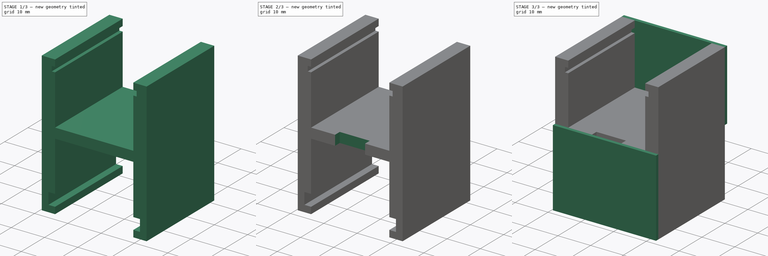
[diagram: build sequence overview — one tinted view per stage of 3, left to right]
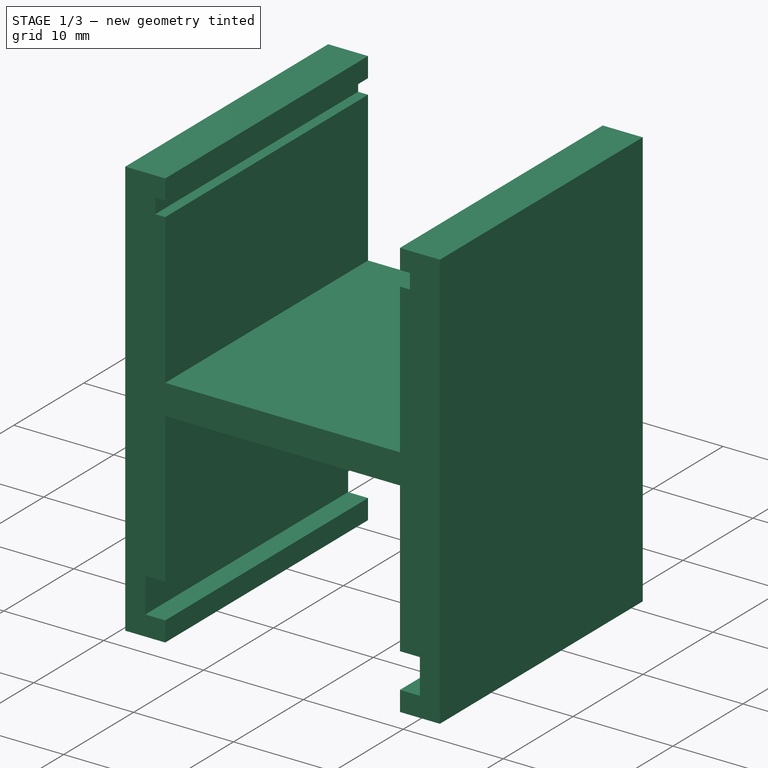
[diagram: stage 1 of 3 — iso view after this stage's code; geometry added in this stage tinted green]
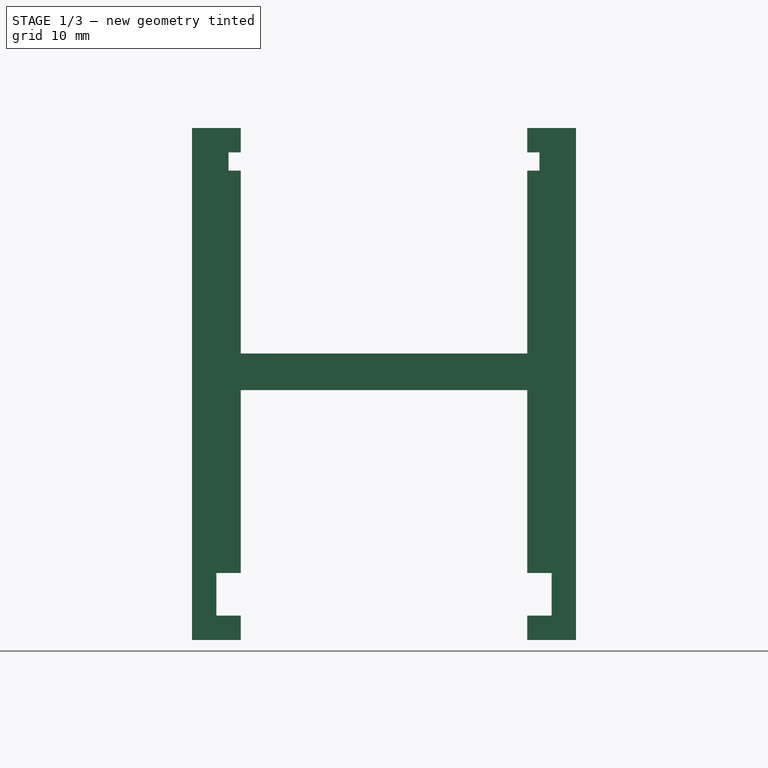
[diagram: stage 1 of 3 — front view after this stage's code; geometry added in this stage tinted green]
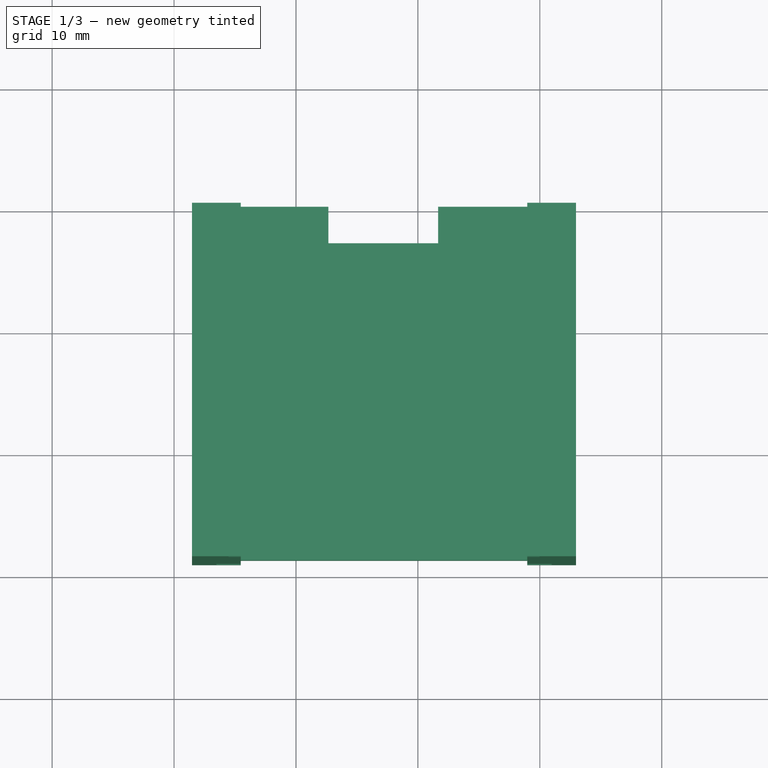
[diagram: stage 1 of 3 — top view after this stage's code; geometry added in this stage tinted green]
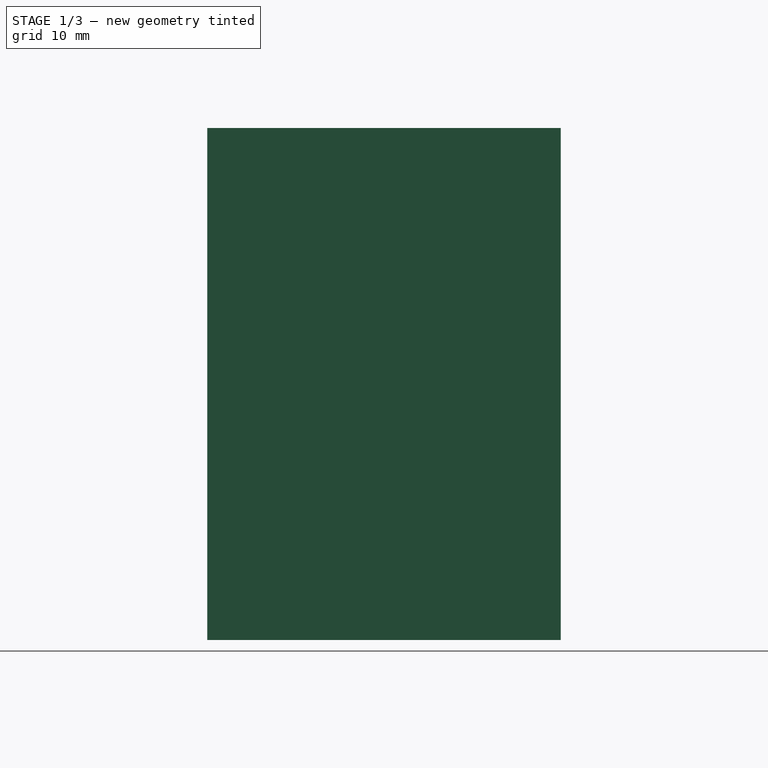
[diagram: stage 1 of 3 — right view after this stage's code; geometry added in this stage tinted green]
FCSTD DOCUMENT  (FreeCAD 0.20R29410 (Git))
Label: piezas_final
License: All rights reserved
LicenseURL: http://en.wikipedia.org/wiki/All_rights_reserved
objects: Sketcher::SketchObject×5, PartDesign::Pad×3, PartDesign::Pocket×2, PartDesign::Body×1
note: 16 computed .brp shape members not serialized (recipe doc carries the construction recipe); baked Part::Feature solids carry a one-line shape summary decoded from their .brp

FEATURE [Sketcher::SketchObject] Sketch
  FullyConstrained = true
  MapMode = 5
  Placement = pos=(0,0,0) rot=(1,0,0;1.5708rad)
  Support = -> [XZ_Plane]
  sketch-geometry (28):
    g0: LineSegment StartX=-14.5301 StartY=19.7734 StartZ=0 EndX=-18.5301 EndY=19.7734 EndZ=0
    g1: LineSegment StartX=-18.5301 StartY=19.7734 StartZ=0 EndX=-18.5301 EndY=-22.2266 EndZ=0
    g2: LineSegment StartX=-14.5301 StartY=19.7734 StartZ=0 EndX=-14.5301 EndY=17.7734 EndZ=0
    g3: LineSegment StartX=-14.5301 StartY=17.7734 StartZ=0 EndX=-15.5301 EndY=17.7734 EndZ=0
    g4: LineSegment StartX=-15.5301 StartY=17.7734 StartZ=0 EndX=-15.5301 EndY=16.2734 EndZ=0
    g5: LineSegment StartX=-15.5301 StartY=16.2734 StartZ=0 EndX=-14.5301 EndY=16.2734 EndZ=0
    g6: LineSegment StartX=-14.5301 StartY=16.2734 StartZ=0 EndX=-14.5301 EndY=1.27335 EndZ=0
    g7: LineSegment StartX=-14.5301 StartY=1.27335 StartZ=0 EndX=8.96989 EndY=1.27335 EndZ=0
    g8: LineSegment StartX=8.96989 StartY=1.27335 StartZ=0 EndX=8.96989 EndY=16.2734 EndZ=0
    g9: LineSegment StartX=8.96989 StartY=16.2734 StartZ=0 EndX=9.96989 EndY=16.2734 EndZ=0
    g10: LineSegment StartX=9.96989 StartY=16.2734 StartZ=0 EndX=9.96989 EndY=17.7734 EndZ=0
    g11: LineSegment StartX=9.96989 StartY=17.7734 StartZ=0 EndX=8.96989 EndY=17.7734 EndZ=0
    g12: LineSegment StartX=8.96989 StartY=17.7734 StartZ=0 EndX=8.96989 EndY=19.7734 EndZ=0
    g13: LineSegment StartX=8.96989 StartY=19.7734 StartZ=0 EndX=12.9699 EndY=19.7734 EndZ=0
    g14: LineSegment StartX=12.9699 StartY=19.7734 StartZ=0 EndX=12.9699 EndY=-22.2266 EndZ=0
    g15: LineSegment StartX=-18.5301 StartY=-22.2266 StartZ=0 EndX=-14.5301 EndY=-22.2266 EndZ=0
    g16: LineSegment StartX=-14.5301 StartY=-22.2266 StartZ=0 EndX=-14.5301 EndY=-20.2266 EndZ=0
    g17: LineSegment StartX=-14.5301 StartY=-20.2266 StartZ=0 EndX=-16.5301 EndY=-20.2266 EndZ=0
    g18: LineSegment StartX=-16.5301 StartY=-20.2266 StartZ=0 EndX=-16.5301 EndY=-16.7266 EndZ=0
    g19: LineSegment StartX=-16.5301 StartY=-16.7266 StartZ=0 EndX=-14.5301 EndY=-16.7266 EndZ=0
    g20: LineSegment StartX=-14.5301 StartY=-16.7266 StartZ=0 EndX=-14.5301 EndY=-1.72665 EndZ=0
    g21: LineSegment StartX=-14.5301 StartY=-1.72665 StartZ=0 EndX=8.96989 EndY=-1.72665 EndZ=0
    g22: LineSegment StartX=8.96989 StartY=-1.72665 StartZ=0 EndX=8.96989 EndY=-16.7266 EndZ=0
    g23: LineSegment StartX=8.96989 StartY=-16.7266 StartZ=0 EndX=10.9699 EndY=-16.7266 EndZ=0
    g24: LineSegment StartX=10.9699 StartY=-16.7266 StartZ=0 EndX=10.9699 EndY=-20.2266 EndZ=0
    g25: LineSegment StartX=10.9699 StartY=-20.2266 StartZ=0 EndX=8.96989 EndY=-20.2266 EndZ=0
    g26: LineSegment StartX=8.96989 StartY=-20.2266 StartZ=0 EndX=8.96989 EndY=-22.2266 EndZ=0
    g27: LineSegment StartX=8.96989 StartY=-22.2266 StartZ=0 EndX=12.9699 EndY=-22.2266 EndZ=0
  constraints (84):
    c: Horizontal(g0)
    c: Coincident(g1,g0)
    c: Vertical(g1)
    c: DistanceX(g0,g0) = 4
    c: DistanceY(g1,g1) = 42
    c: Coincident(g2,g0)
    c: Vertical(g2)
    c: DistanceY(g2,g2) = 2
    c: Coincident(g3,g2)
    c: Horizontal(g3)
    c: DistanceX(g3,g3) = 1
    c: Coincident(g4,g3)
    c: Vertical(g4)
    c: DistanceY(g4,g4) = 1.5
    c: Coincident(g5,g4)
    c: Horizontal(g5)
    c: DistanceX(g5,g5) = 1
    c: Coincident(g6,g5)
    c: Vertical(g6)
    c: DistanceY(g6,g6) = 15
    c: Coincident(g6,g7)
    c: Horizontal(g7)
    c: Coincident(g7,g8)
    c: Vertical(g8)
    c: Coincident(g8,g9)
    c: Horizontal(g9)
    c: Coincident(g9,g10)
    c: Vertical(g10)
    c: Coincident(g10,g11)
    c: Horizontal(g11)
    c: Coincident(g11,g12)
    c: Vertical(g12)
    c: Coincident(g12,g13)
    c: Horizontal(g13)
    c: Coincident(g13,g14)
    c: Vertical(g14)
    c: DistanceX(g7,g7) = 23.5
    c: DistanceY(g8,g8) = 15
    c: DistanceX(g9,g9) = 1
    c: DistanceY(g10,g10) = 1.5
    c: DistanceY(g12,g12) = 2
    c: DistanceY(g14,g14) = 42
    c: Coincident(g1,g15)
    c: Horizontal(g15)
    c: Coincident(g15,g16)
    c: Vertical(g16)
    c: Coincident(g16,g17)
    c: Horizontal(g17)
    c: Coincident(g17,g18)
    c: Vertical(g18)
    c: Coincident(g18,g19)
    c: Horizontal(g19)
    c: Coincident(g19,g20)
    c: Vertical(g20)
    c: Coincident(g20,g21)
    c: Horizontal(g21)
    c: Coincident(g21,g22)
    c: Vertical(g22)
    c: Coincident(g22,g23)
    c: Horizontal(g23)
    c: Coincident(g23,g24)
    c: Vertical(g24)
    c: Coincident(g24,g25)
    c: Coincident(g25,g26)
    c: Vertical(g26)
    c: Coincident(g26,g27)
    c: Coincident(g27,g14)
    c: DistanceX(g15,g15) = 4
    c: DistanceX(g17,g17) = 2
    c: DistanceX(g19,g19) = 2
    c: DistanceX(g21,g21) = 23.5
    c: DistanceX(g23,g23) = 2
    c: DistanceX(g25,g25) = 2
    c: DistanceX(g27,g27) = 4
    c: DistanceY(g16,g16) = 2
    c: DistanceY(g18,g18) = 3.5
    c: DistanceY(g20,g20) = 15
    c: DistanceY(g22,g22) = 15
    c: DistanceY(g24,g24) = 3.5
    c: DistanceY(g26,g26) = 2
    c: Horizontal(g25)
    c: DistanceX(g13,g13) = 4
    c: DistanceX(g20) = -14.5301
    c: DistanceY(g20) = -1.72665
FEATURE [PartDesign::Pad] Pad
  Direction = (0,-1,-2e-16)
  Length = 29
  Length2 = 10
  Placement = pos=(0,0,0) rot=(1,0,0;1.5708rad)
  Profile = -> Sketch
  ReferenceAxis = -> Sketch [N_Axis]
  Type = 0
FEATURE [Sketcher::SketchObject] Sketch001
  FullyConstrained = false
  MapMode = 5
  Placement = pos=(0,-3e-16,1.27335) rot=(0,0,1;3.14159rad)
  Support = -> [Pad]
  sketch-geometry (4):
    g0: LineSegment StartX=-1.65958 StartY=0 StartZ=0 EndX=-1.65958 EndY=3 EndZ=0
    g1: LineSegment StartX=-1.65958 StartY=3 StartZ=0 EndX=7.34042 EndY=3 EndZ=0
    g2: LineSegment StartX=7.34042 StartY=3 StartZ=0 EndX=7.34042 EndY=0 EndZ=0
    g3: LineSegment StartX=7.34042 StartY=0 StartZ=0 EndX=-1.65958 EndY=0 EndZ=0
  constraints (11):
    c: PointOnObject(g0,g-1)
    c: Vertical(g0)
    c: Coincident(g0,g1)
    c: Horizontal(g1)
    c: Coincident(g1,g2)
    c: PointOnObject(g2,g-1)
    c: Vertical(g2)
    c: Coincident(g2,g3)
    c: Coincident(g3,g0)
    c: DistanceX(g1,g1) = 9
    c: DistanceY(g2,g2) = 3
FEATURE [PartDesign::Pocket] Pocket
  BaseFeature = -> Pad
  Direction = (0,2e-16,-1)
  Length = 5
  Length2 = 5
  Placement = pos=(0,0,0) rot=(1,0,0;1.5708rad)
  Profile = -> Sketch001
  ReferenceAxis = -> Sketch001 [N_Axis]
  Type = 0
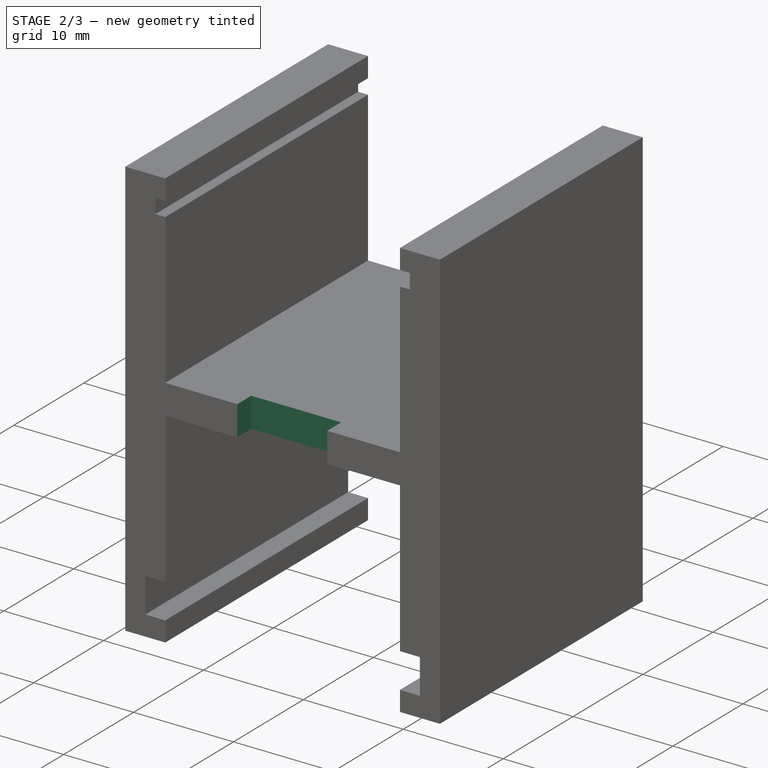
[diagram: stage 2 of 3 — iso view after this stage's code; geometry added in this stage tinted green]
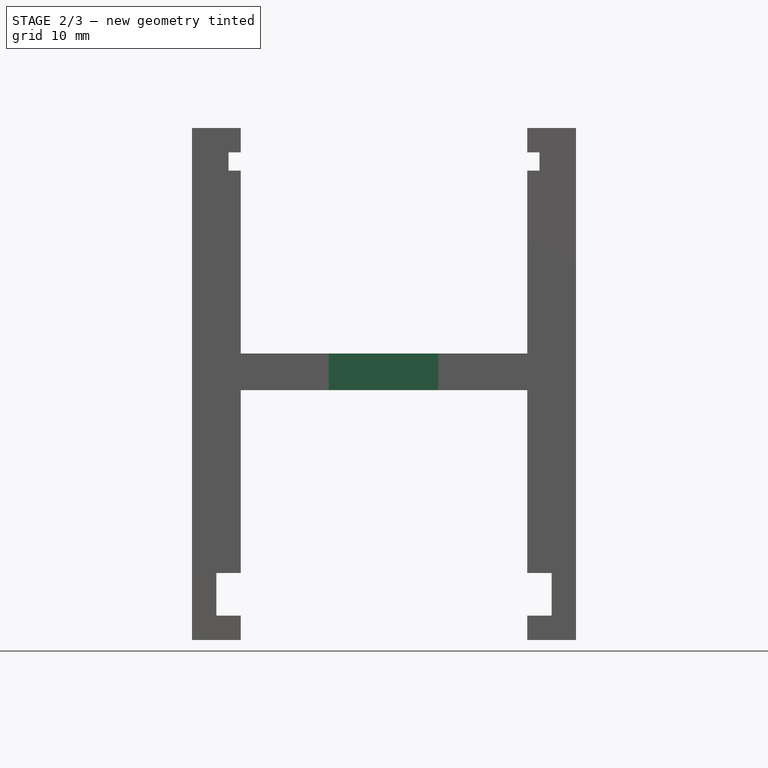
[diagram: stage 2 of 3 — front view after this stage's code; geometry added in this stage tinted green]
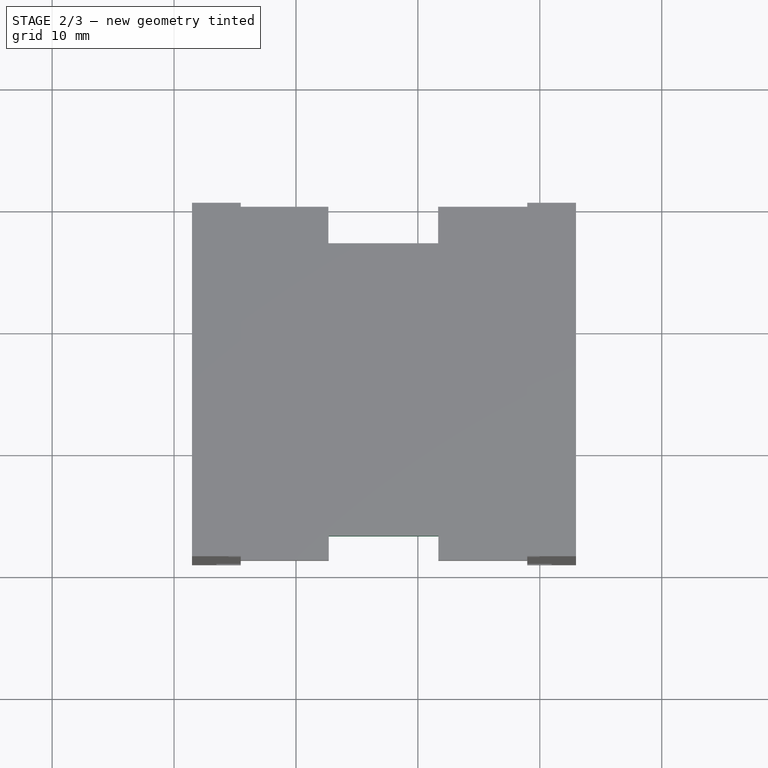
[diagram: stage 2 of 3 — top view after this stage's code; geometry added in this stage tinted green]
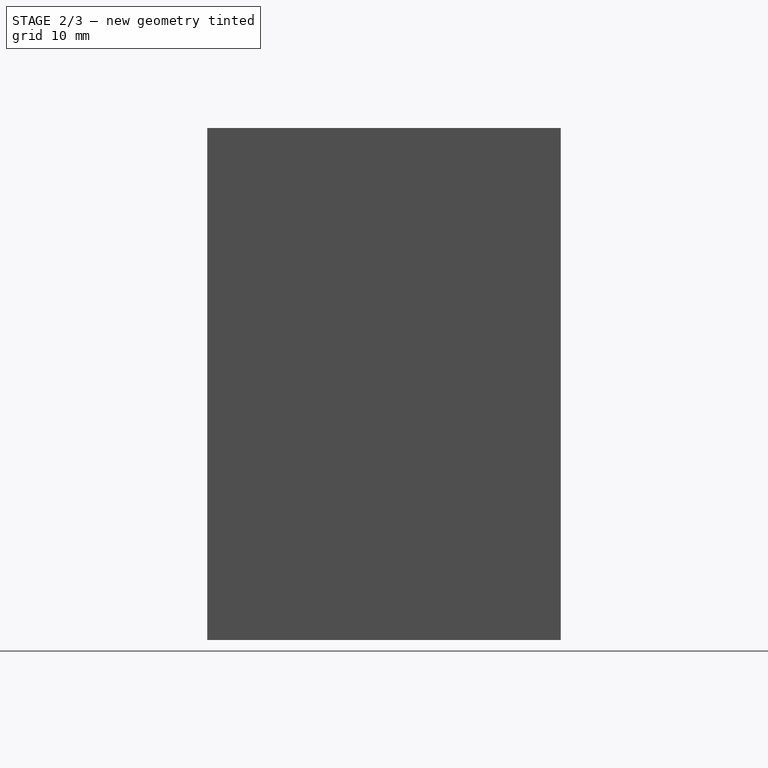
[diagram: stage 2 of 3 — right view after this stage's code; geometry added in this stage tinted green]
FEATURE [Sketcher::SketchObject] Sketch002
  FullyConstrained = false
  MapMode = 5
  Placement = pos=(0,4e-16,-1.72665) rot=(1,0,0;3.14159rad)
  Support = -> [Pocket]
  sketch-geometry (4):
    g0: LineSegment StartX=-7.31513 StartY=29.0028 StartZ=0 EndX=-7.31513 EndY=27.0028 EndZ=0
    g1: LineSegment StartX=-7.31513 StartY=27.0028 StartZ=0 EndX=1.68487 EndY=27.0028 EndZ=0
    g2: LineSegment StartX=1.68487 StartY=27.0028 StartZ=0 EndX=1.68487 EndY=29.0028 EndZ=0
    g3: LineSegment StartX=1.68487 StartY=29.0028 StartZ=0 EndX=-7.31513 EndY=29.0028 EndZ=0
  constraints (10):
    c: Vertical(g0)
    c: Coincident(g0,g1)
    c: Horizontal(g1)
    c: Coincident(g1,g2)
    c: Vertical(g2)
    c: Coincident(g2,g3)
    c: Coincident(g3,g0)
    c: Horizontal(g3)
    c: DistanceX(g1,g1) = 9
    c: DistanceY(g0,g0) = 2
FEATURE [PartDesign::Pocket] Pocket001
  BaseFeature = -> Pocket
  Direction = (0,-2e-16,1)
  Length = 5
  Length2 = 5
  Placement = pos=(0,0,0) rot=(1,0,0;1.5708rad)
  Profile = -> Sketch002
  ReferenceAxis = -> Sketch002 [N_Axis]
  Type = 0
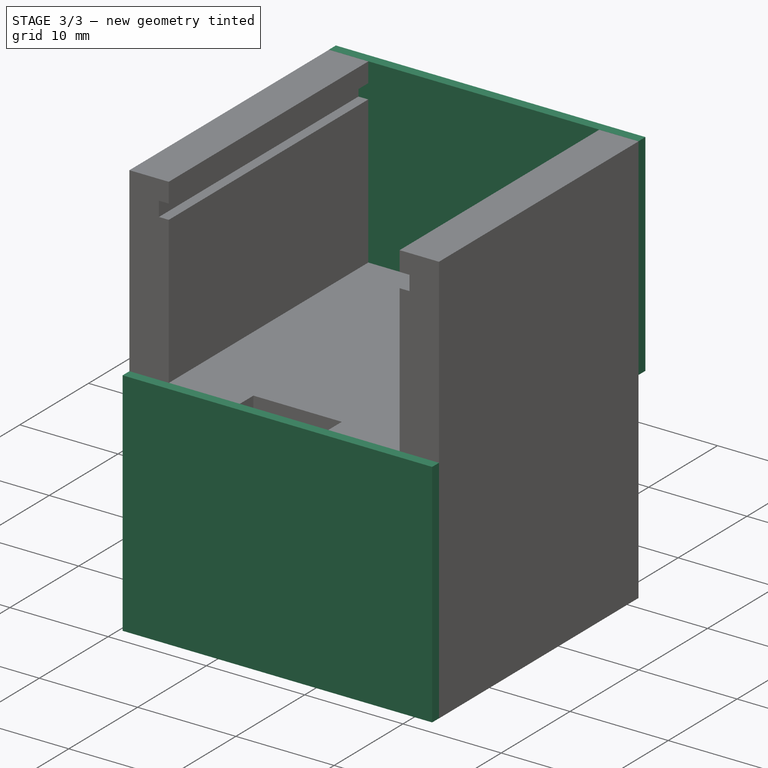
[diagram: stage 3 of 3 — iso view after this stage's code; geometry added in this stage tinted green]
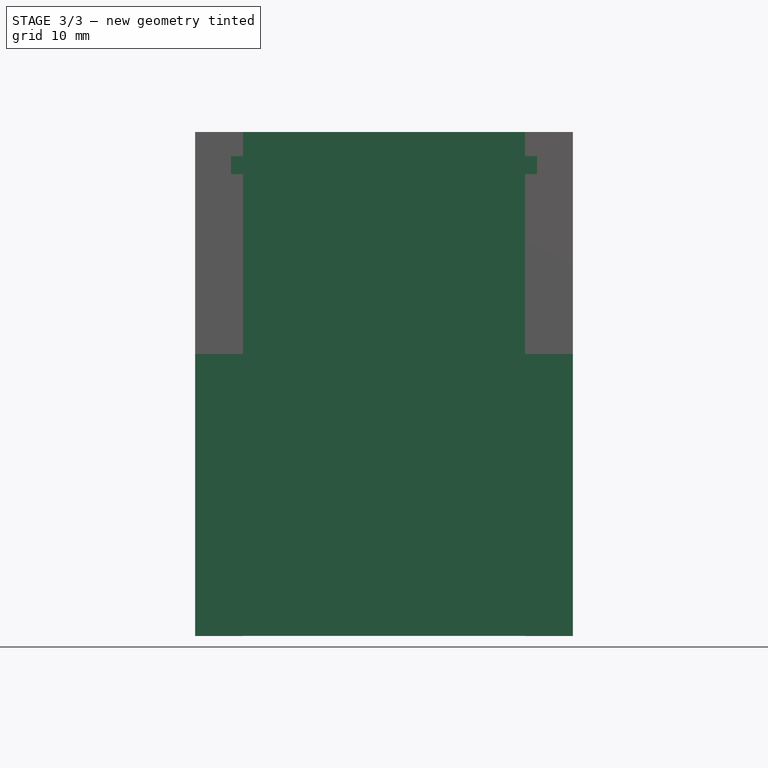
[diagram: stage 3 of 3 — front view after this stage's code; geometry added in this stage tinted green]
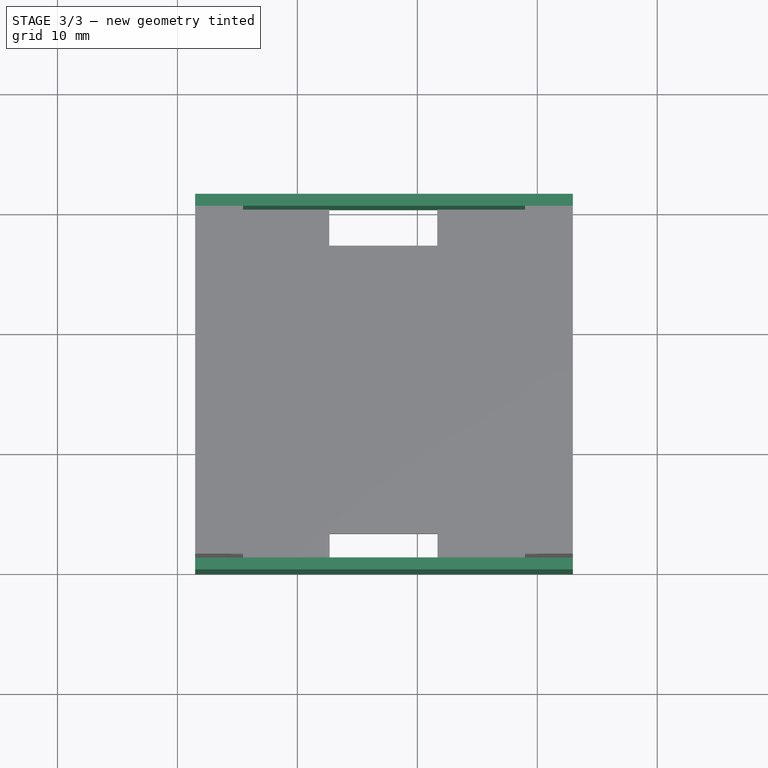
[diagram: stage 3 of 3 — top view after this stage's code; geometry added in this stage tinted green]
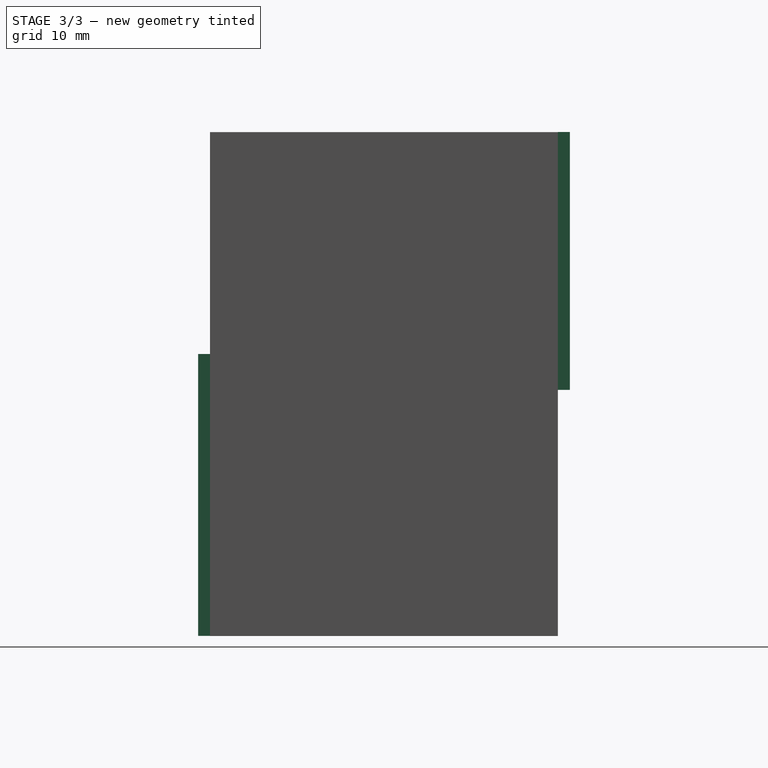
[diagram: stage 3 of 3 — right view after this stage's code; geometry added in this stage tinted green]
FEATURE [Sketcher::SketchObject] Sketch003
  FullyConstrained = false
  MapMode = 5
  Placement = pos=(12.9699,0,0) rot=(0.707107,0,0.707107;3.14159rad)
  Support = -> [Pocket001]
  sketch-geometry (4):
    g0: LineSegment StartX=19.7847 StartY=0 StartZ=0 EndX=19.7847 EndY=-1 EndZ=0
    g1: LineSegment StartX=19.7847 StartY=-1 StartZ=0 EndX=-1.71533 EndY=-1 EndZ=0
    g2: LineSegment StartX=-1.71533 StartY=-1 StartZ=0 EndX=-1.71533 EndY=0 EndZ=0
    g3: LineSegment StartX=-1.71533 StartY=0 StartZ=0 EndX=19.7847 EndY=0 EndZ=0
  constraints (11):
    c: PointOnObject(g0,g-1)
    c: Vertical(g0)
    c: Coincident(g0,g1)
    c: Horizontal(g1)
    c: Coincident(g1,g2)
    c: PointOnObject(g2,g-1)
    c: Coincident(g2,g3)
    c: Coincident(g3,g0)
    c: DistanceY(g0,g0) = 1
    c: DistanceX(g3,g3) = 21.5
    c: DistanceX(g1,g1) = 21.5
FEATURE [PartDesign::Pad] Pad001
  BaseFeature = -> Pocket001
  Direction = (-1,0,0)
  Length = 31.5
  Length2 = 0
  Placement = pos=(0,0,0) rot=(1,0,0;1.5708rad)
  Profile = -> Sketch003
  ReferenceAxis = -> Sketch003 [N_Axis]
  Type = 4
  UseCustomVector = true
FEATURE [Sketcher::SketchObject] Sketch004
  FullyConstrained = false
  MapMode = 5
  Placement = pos=(-18.5301,0,0) rot=(0.707107,0,-0.707107;3.14159rad)
  Support = -> [Pad001]
  sketch-geometry (4):
    g0: LineSegment StartX=22.2156 StartY=28.9919 StartZ=0 EndX=22.2156 EndY=29.9919 EndZ=0
    g1: LineSegment StartX=22.2156 StartY=29.9919 StartZ=0 EndX=-1.28436 EndY=29.9919 EndZ=0
    g2: LineSegment StartX=-1.28436 StartY=29.9919 StartZ=0 EndX=-1.28436 EndY=28.9919 EndZ=0
    g3: LineSegment StartX=-1.28436 StartY=28.9919 StartZ=0 EndX=22.2156 EndY=28.9919 EndZ=0
  constraints (10):
    c: Vertical(g0)
    c: Coincident(g0,g1)
    c: Horizontal(g1)
    c: Coincident(g1,g2)
    c: Vertical(g2)
    c: Coincident(g2,g3)
    c: Coincident(g3,g0)
    c: Horizontal(g3)
    c: DistanceX(g1,g1) = 23.5
    c: DistanceY(g0,g0) = 1
FEATURE [PartDesign::Pad] Pad002
  BaseFeature = -> Pad001
  Direction = (1,0,0)
  Length = 31.5
  Length2 = 0
  Placement = pos=(0,0,0) rot=(1,0,0;1.5708rad)
  Profile = -> Sketch004
  ReferenceAxis = -> Sketch004 [N_Axis]
  Type = 4
  UseCustomVector = true
FEATURE [PartDesign::Body] Body
  Group = -> [Sketch,Pad,Sketch001,Pocket,Sketch002,Pocket001,Sketch003,Pad001,Sketch004,Pad002]
  Origin = -> Origin
  Tip = -> Pad002
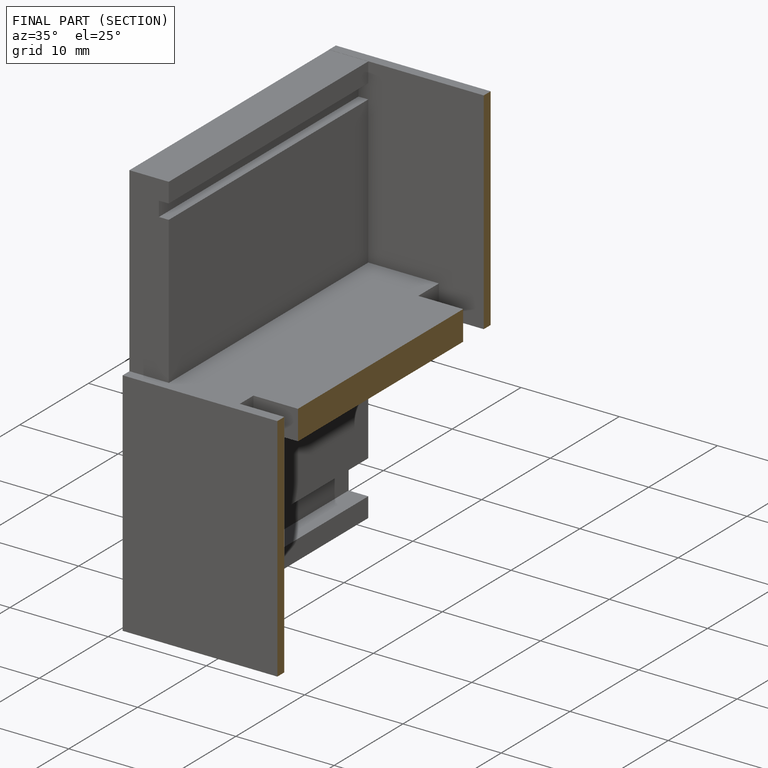
[diagram: finished part — half-section view (interior)]
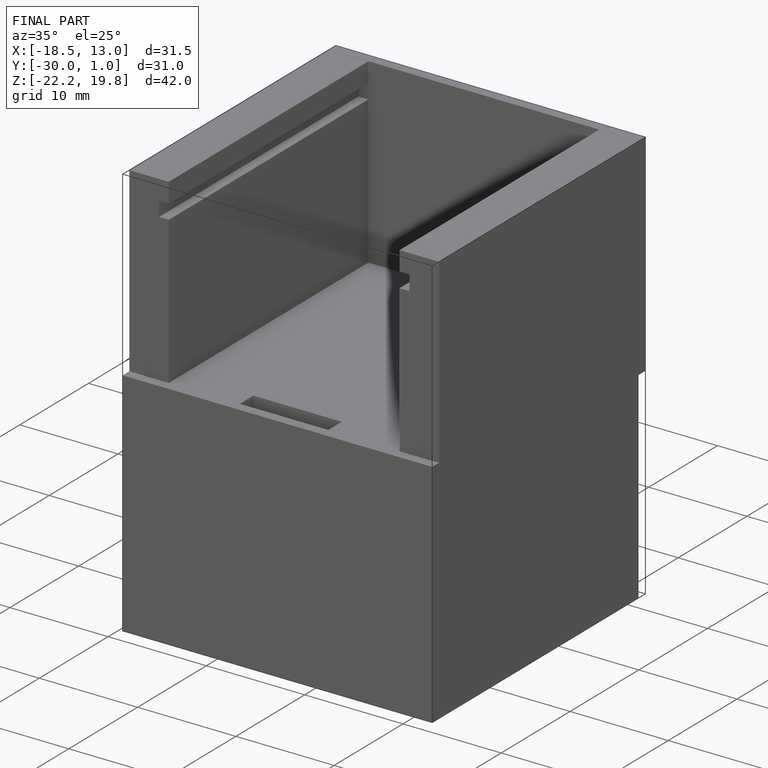
[diagram: finished part — iso view with bounding-box wireframe]
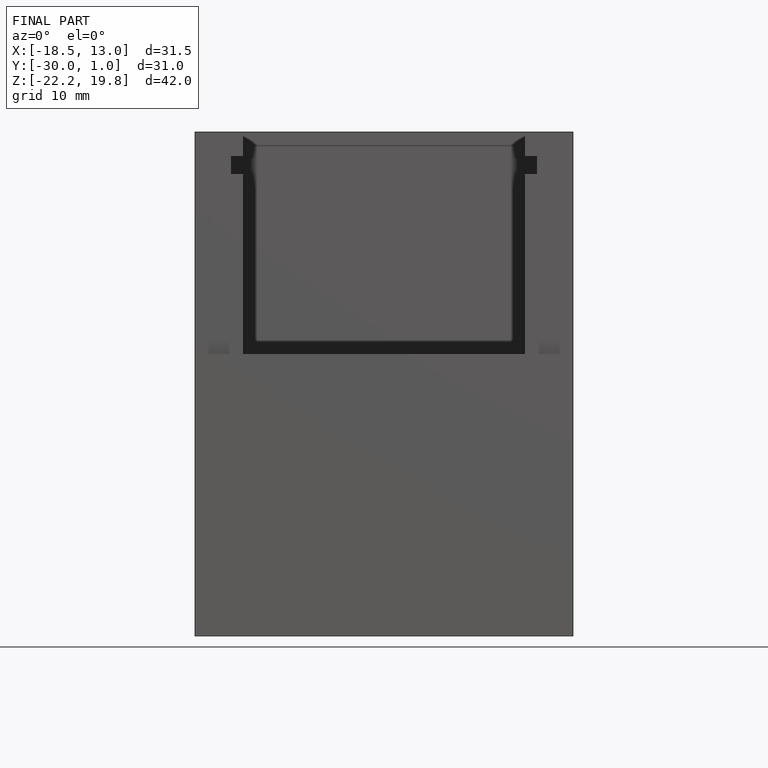
[diagram: finished part — front view with bounding-box wireframe]
